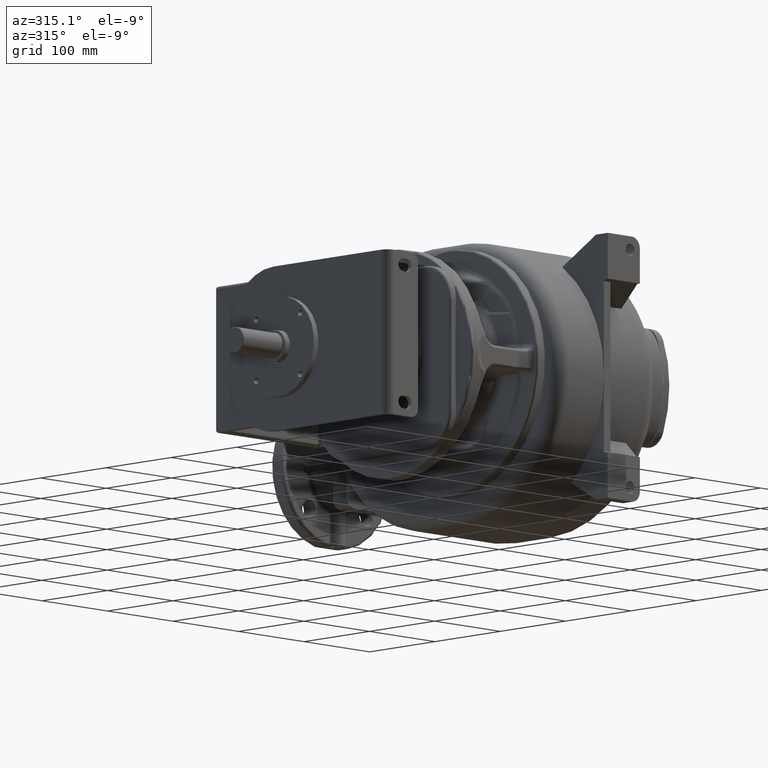
[diagram: clean part render]
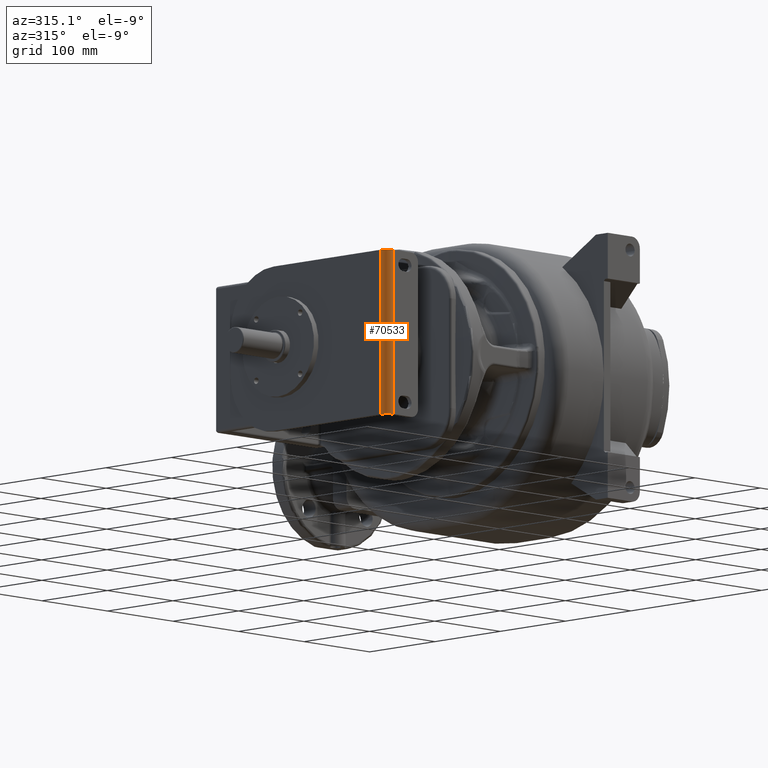
[diagram: same view with one face highlighted and labeled with its STEP entity id]
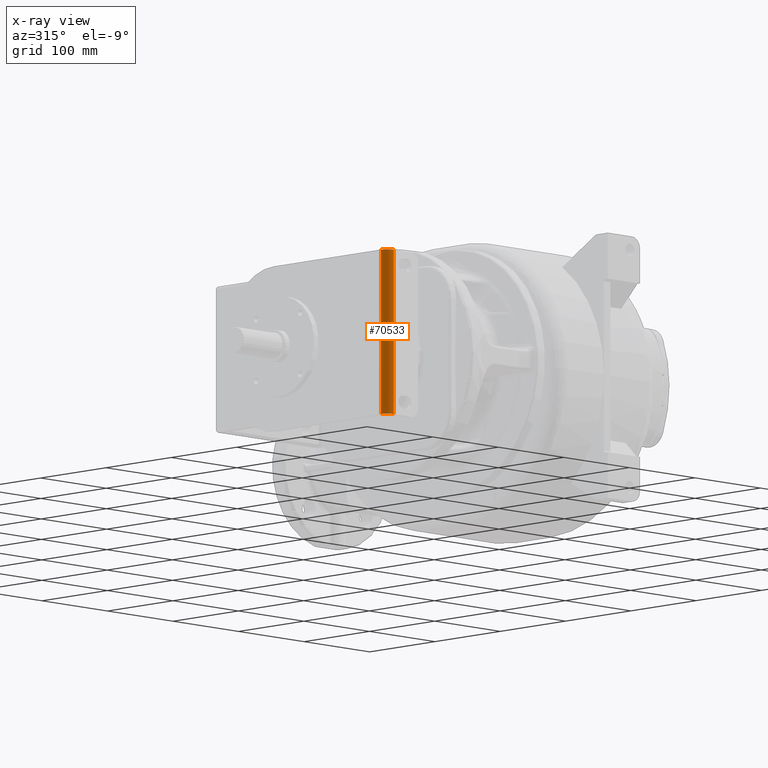
[diagram: x-ray of the same camera — body ghosted, the highlighted face saturated]
A machine part, auxiliary view. The second image highlights one B-rep face of the part: STEP entity #70533.
The next image is the same camera in x-ray: the body ghosted, the highlighted face saturated — about 0% of this face is hidden behind the body in this view.
In plain terms, the highlighted cylindrical surface (edge-blend (fillet) strip) has radius 10 mm, axis along (0, 0, -1).
Its self-contained STEP definition (entity closure, byte-faithful):
#24803=DIRECTION('',(0.E0,0.E0,1.E0));
#24804=VECTOR('',#24803,1.8E2);
#24805=CARTESIAN_POINT('',(-3.605E2,2.826862858051E-14,-9.E1));
#24806=LINE('',#24805,#24804);
#24807=CARTESIAN_POINT('',(-3.605E2,1.E1,-9.E1));
#24808=DIRECTION('',(0.E0,0.E0,-1.E0));
#24809=DIRECTION('',(0.E0,-1.E0,0.E0));
#24810=AXIS2_PLACEMENT_3D('',#24807,#24808,#24809);
#24812=DIRECTION('',(0.E0,0.E0,1.E0));
#24813=VECTOR('',#24812,1.8E2);
#24814=CARTESIAN_POINT('',(-3.705E2,1.E1,-9.E1));
#24815=LINE('',#24814,#24813);
#24816=CARTESIAN_POINT('',(-3.605E2,1.E1,9.E1));
#24817=DIRECTION('',(0.E0,0.E0,-1.E0));
#24818=DIRECTION('',(0.E0,-1.E0,0.E0));
#24819=AXIS2_PLACEMENT_3D('',#24816,#24817,#24818);
#36021=CARTESIAN_POINT('',(-3.605E2,2.826862858051E-14,-9.E1));
#36022=CARTESIAN_POINT('',(-3.605E2,2.826862858051E-14,9.E1));
#36023=VERTEX_POINT('',#36021);
#36024=VERTEX_POINT('',#36022);
#36025=CARTESIAN_POINT('',(-3.705E2,1.E1,-9.E1));
#36026=VERTEX_POINT('',#36025);
#36027=CARTESIAN_POINT('',(-3.705E2,1.E1,9.E1));
#36028=VERTEX_POINT('',#36027);
#70519=CARTESIAN_POINT('',(-3.605E2,1.E1,-9.E1));
#70520=DIRECTION('',(0.E0,0.E0,-1.E0));
#70521=DIRECTION('',(0.E0,-1.E0,0.E0));
#70522=AXIS2_PLACEMENT_3D('',#70519,#70520,#70521);
#70523=CYLINDRICAL_SURFACE('',#70522,1.E1);
#70525=ORIENTED_EDGE('',*,*,#70524,.F.);
#70527=ORIENTED_EDGE('',*,*,#70526,.T.);
#70529=ORIENTED_EDGE('',*,*,#70528,.T.);
#70530=ORIENTED_EDGE('',*,*,#70509,.F.);
#70531=EDGE_LOOP('',(#70525,#70527,#70529,#70530));
#70532=FACE_OUTER_BOUND('',#70531,.F.);
#70533=ADVANCED_FACE('',(#70532),#70523,.T.);
#24811=CIRCLE('',#24810,1.E1);
#24820=CIRCLE('',#24819,1.E1);
#70509=EDGE_CURVE('',#36024,#36028,#24820,.T.);
#70524=EDGE_CURVE('',#36023,#36024,#24806,.T.);
#70526=EDGE_CURVE('',#36023,#36026,#24811,.T.);
#70528=EDGE_CURVE('',#36026,#36028,#24815,.T.);